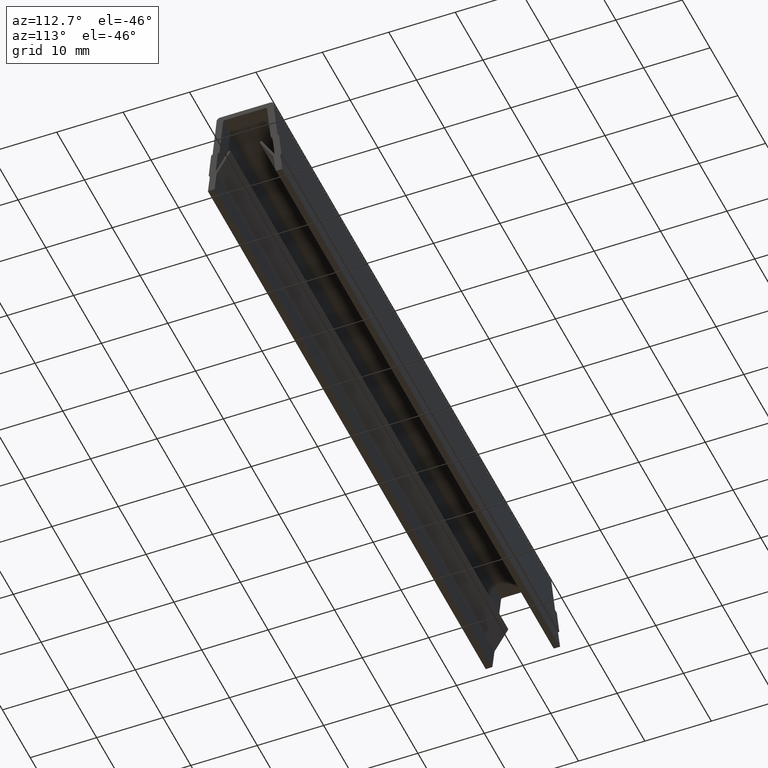
[diagram: clean part render]
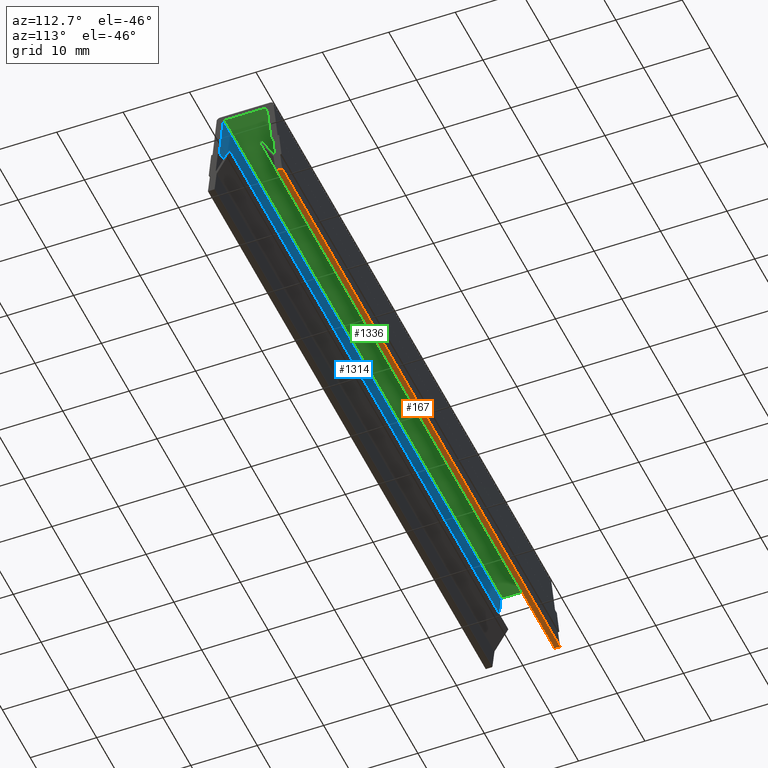
[diagram: same view with three faces highlighted in distinct colors, each labeled with its STEP entity id]
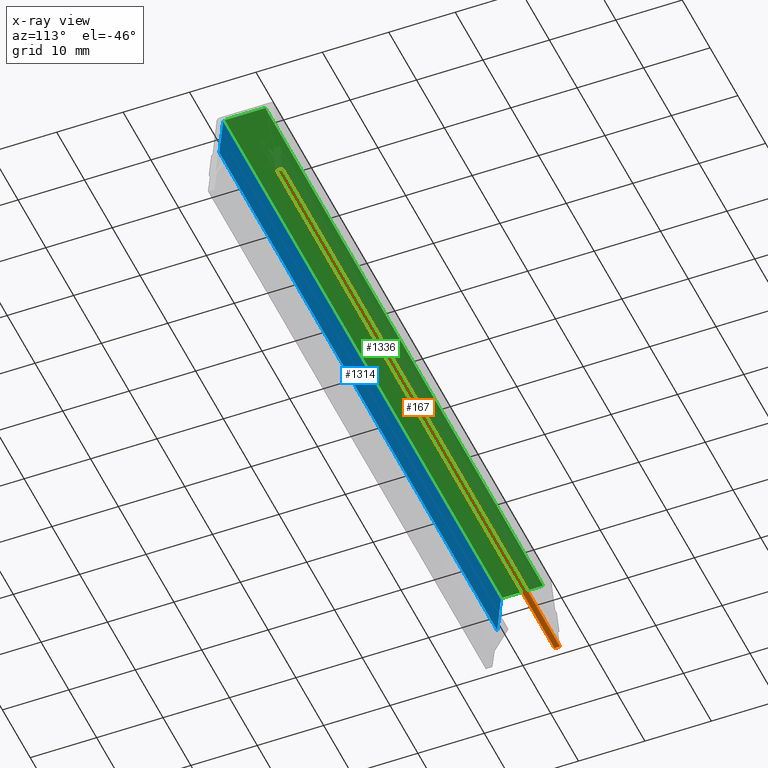
[diagram: x-ray of the same camera — body ghosted, the three highlighted faces saturated]
A machine part, auxiliary view with three faces highlighted in distinct colors.
The next image is the same camera in x-ray (body ghosted, the three faces saturated) — at least one of them is partly hidden behind the body in this view.
Their STEP definitions:

[orange] entity #167 — the highlighted planar face has unit normal (0, 0, -1).
#128=CARTESIAN_POINT('',(105.0,5.638646426968686,-13.200000000000003));
#129=DIRECTION('',(0.0,0.0,-1.0));
#130=DIRECTION('',(0.0,-1.0,0.0));
#131=AXIS2_PLACEMENT_3D('',#128,#129,#130);
#132=PLANE('',#131);
#133=CARTESIAN_POINT('',(100.0,5.597608298343600,-13.200000000000003));
#134=VERTEX_POINT('',#133);
#135=CARTESIAN_POINT('',(100.0,4.776845725841904,-13.200000000000003));
#136=VERTEX_POINT('',#135);
#137=CARTESIAN_POINT('',(100.0,5.597608298343600,-13.200000000000003));
#138=DIRECTION('',(0.0,-1.0,0.0));
#139=VECTOR('',#138,0.820762572501696);
#140=LINE('',#137,#139);
#141=EDGE_CURVE('',#134,#136,#140,.T.);
#142=ORIENTED_EDGE('',*,*,#141,.T.);
#143=CARTESIAN_POINT('',(0.0,4.776845725841904,-13.200000000000003));
#144=VERTEX_POINT('',#143);
#145=CARTESIAN_POINT('',(100.0,4.776845725841904,-13.200000000000003));
#146=DIRECTION('',(-1.0,0.0,0.0));
#147=VECTOR('',#146,100.0);
#148=LINE('',#145,#147);
#149=EDGE_CURVE('',#136,#144,#148,.T.);
#150=ORIENTED_EDGE('',*,*,#149,.T.);
#151=CARTESIAN_POINT('',(0.0,5.597608298343600,-13.200000000000003));
#152=VERTEX_POINT('',#151);
#153=CARTESIAN_POINT('',(0.0,5.597608298343600,-13.200000000000003));
#154=DIRECTION('',(0.0,-1.0,0.0));
#155=VECTOR('',#154,0.820762572501696);
#156=LINE('',#153,#155);
#157=EDGE_CURVE('',#152,#144,#156,.T.);
#158=ORIENTED_EDGE('',*,*,#157,.F.);
#159=CARTESIAN_POINT('',(100.0,5.597608298343600,-13.200000000000003));
#160=DIRECTION('',(-1.0,0.0,0.0));
#161=VECTOR('',#160,100.0);
#162=LINE('',#159,#161);
#163=EDGE_CURVE('',#134,#152,#162,.T.);
#164=ORIENTED_EDGE('',*,*,#163,.F.);
#165=EDGE_LOOP('',(#142,#150,#158,#164));
#166=FACE_OUTER_BOUND('',#165,.T.);
#167=ADVANCED_FACE('',(#166),#132,.T.);

[blue] entity #1314 — the highlighted planar face has unit normal (0, -0.9955, 0.0948).
#412=CARTESIAN_POINT('',(100.0,-3.866478573623335,-6.173025023045049));
#413=VERTEX_POINT('',#412);
#420=CARTESIAN_POINT('',(100.0,-3.300123593032668,-0.226297726842999));
#421=VERTEX_POINT('',#420);
#422=CARTESIAN_POINT('',(100.0,-3.866478573623340,-6.173025023045049));
#423=DIRECTION('',(0.0,0.094809092627995,0.995495472593952));
#424=VECTOR('',#423,5.973635701935161);
#425=LINE('',#422,#424);
#426=EDGE_CURVE('',#413,#421,#425,.T.);
#773=CARTESIAN_POINT('',(0.0,-3.300123593032668,-0.226297726843002));
#774=VERTEX_POINT('',#773);
#782=CARTESIAN_POINT('',(0.0,-3.866478573623335,-6.173025023045049));
#783=VERTEX_POINT('',#782);
#784=CARTESIAN_POINT('',(0.0,-3.866478573623335,-6.173025023045049));
#785=DIRECTION('',(0.0,0.094809092627995,0.995495472593952));
#786=VECTOR('',#785,5.973635701935159);
#787=LINE('',#784,#786);
#788=EDGE_CURVE('',#783,#774,#787,.T.);
#1288=CARTESIAN_POINT('',(100.0,-3.866478573623335,-6.173025023045049));
#1289=DIRECTION('',(-1.0,0.0,0.0));
#1290=VECTOR('',#1289,100.0);
#1291=LINE('',#1288,#1290);
#1292=EDGE_CURVE('',#413,#783,#1291,.T.);
#1298=CARTESIAN_POINT('',(105.0,-3.894796322652868,-6.470361387855153));
#1299=DIRECTION('',(0.0,-0.995495472593952,0.094809092627995));
#1300=DIRECTION('',(0.0,0.094809092627995,0.995495472593952));
#1301=AXIS2_PLACEMENT_3D('',#1298,#1299,#1300);
#1302=PLANE('',#1301);
#1303=ORIENTED_EDGE('',*,*,#788,.T.);
#1304=CARTESIAN_POINT('',(0.0,-3.300123593032668,-0.226297726843002));
#1305=DIRECTION('',(1.0,0.0,0.0));
#1306=VECTOR('',#1305,100.0);
#1307=LINE('',#1304,#1306);
#1308=EDGE_CURVE('',#774,#421,#1307,.T.);
#1309=ORIENTED_EDGE('',*,*,#1308,.T.);
#1310=ORIENTED_EDGE('',*,*,#426,.F.);
#1311=ORIENTED_EDGE('',*,*,#1292,.T.);
#1312=EDGE_LOOP('',(#1303,#1309,#1310,#1311));
#1313=FACE_OUTER_BOUND('',#1312,.T.);
#1314=ADVANCED_FACE('',(#1313),#1302,.F.);

[green] entity #1336 — the highlighted planar face has unit normal (0, 0, 1).
#428=CARTESIAN_POINT('',(100.0,-3.051249724884181,1.868352E-016));
#429=VERTEX_POINT('',#428);
#437=CARTESIAN_POINT('',(100.0,3.051249724884181,-1.589522E-015));
#438=VERTEX_POINT('',#437);
#439=CARTESIAN_POINT('',(100.0,-3.051249724884181,1.868352E-016));
#440=DIRECTION('',(0.0,1.0,0.0));
#441=VECTOR('',#440,6.102499449768363);
#442=LINE('',#439,#441);
#443=EDGE_CURVE('',#429,#438,#442,.T.);
#756=CARTESIAN_POINT('',(0.0,3.051249724884181,-1.589522E-015));
#757=VERTEX_POINT('',#756);
#765=CARTESIAN_POINT('',(0.0,-3.051249724884181,1.868352E-016));
#766=VERTEX_POINT('',#765);
#767=CARTESIAN_POINT('',(0.0,-3.051249724884181,1.868352E-016));
#768=DIRECTION('',(0.0,1.0,0.0));
#769=VECTOR('',#768,6.102499449768363);
#770=LINE('',#767,#769);
#771=EDGE_CURVE('',#766,#757,#770,.T.);
#1315=CARTESIAN_POINT('',(105.0,3.356374697372599,-1.589522E-015));
#1316=DIRECTION('',(0.0,0.0,1.0));
#1317=DIRECTION('',(-1.0,0.0,0.0));
#1318=AXIS2_PLACEMENT_3D('',#1315,#1316,#1317);
#1319=PLANE('',#1318);
#1320=ORIENTED_EDGE('',*,*,#771,.T.);
#1321=CARTESIAN_POINT('',(0.0,3.051249724884181,-1.589522E-015));
#1322=DIRECTION('',(1.0,0.0,0.0));
#1323=VECTOR('',#1322,100.0);
#1324=LINE('',#1321,#1323);
#1325=EDGE_CURVE('',#757,#438,#1324,.T.);
#1326=ORIENTED_EDGE('',*,*,#1325,.T.);
#1327=ORIENTED_EDGE('',*,*,#443,.F.);
#1328=CARTESIAN_POINT('',(100.0,-3.051249724884181,1.868352E-016));
#1329=DIRECTION('',(-1.0,0.0,0.0));
#1330=VECTOR('',#1329,100.0);
#1331=LINE('',#1328,#1330);
#1332=EDGE_CURVE('',#429,#766,#1331,.T.);
#1333=ORIENTED_EDGE('',*,*,#1332,.T.);
#1334=EDGE_LOOP('',(#1320,#1326,#1327,#1333));
#1335=FACE_OUTER_BOUND('',#1334,.T.);
#1336=ADVANCED_FACE('',(#1335),#1319,.F.);